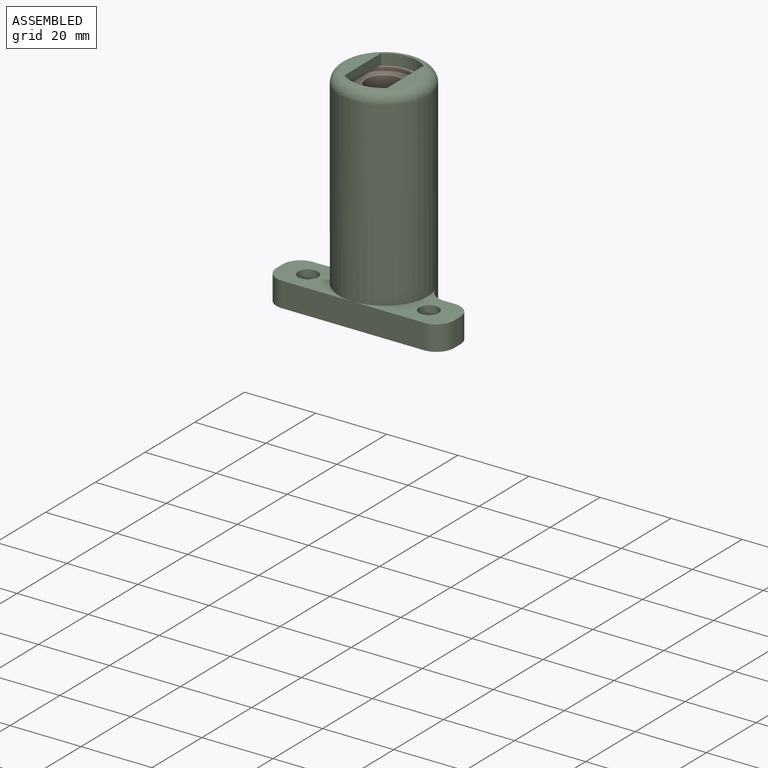
[diagram: assembled view]
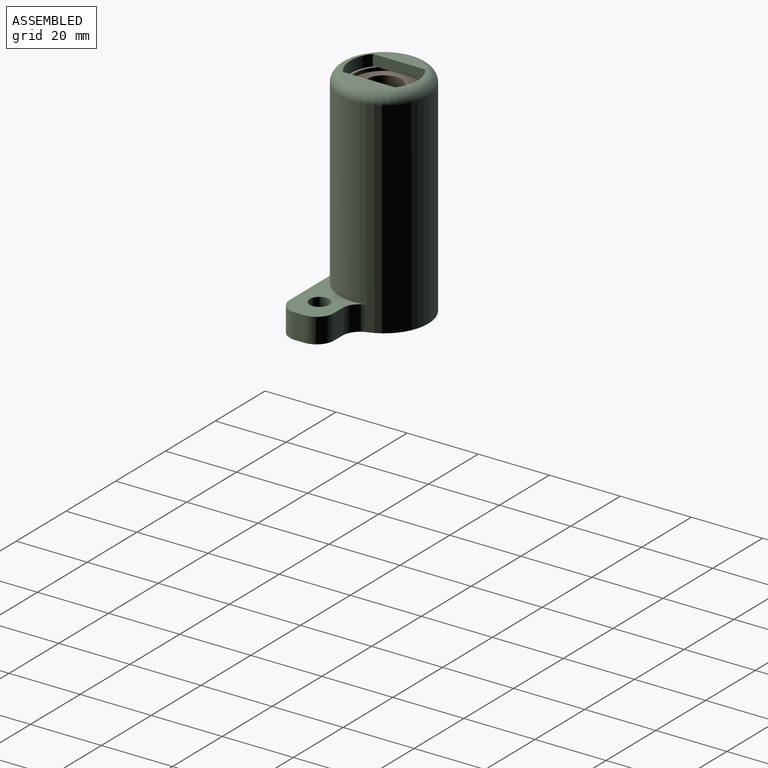
[diagram: assembled view, second angle]
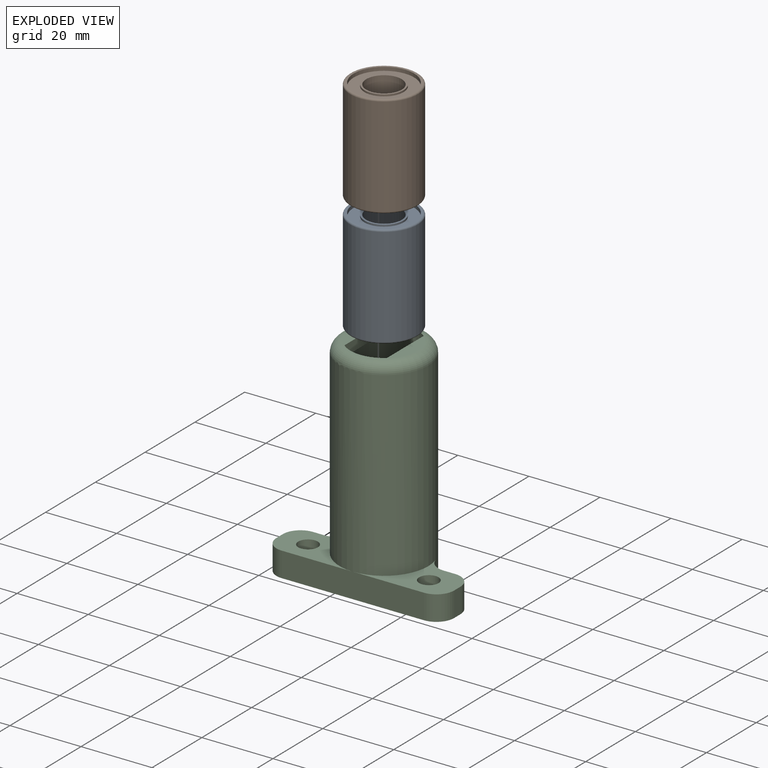
[diagram: exploded view]
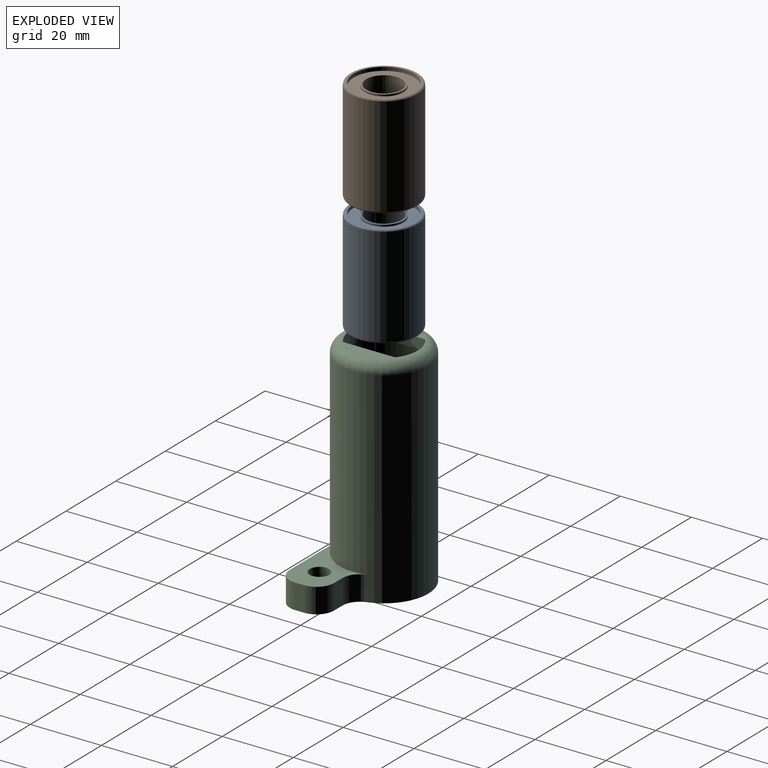
[diagram: exploded view, second angle]
ASSEMBLY  parts=3 mates=4
PART A: 14 faces, bbox 20.6x29x20.6 mm
  f0: plane 18x18mm, normal (0,-1,0), area 27.5mm2, adj f1,f13
  f1: torus R=9mm, axis (0,-1,0), area 46mm2, adj f0,f2
  f2: cylinder r=9.5mm len=28mm, axis (0,-1,0), area 1671.3mm2, adj f1,f3
  f3: torus R=9mm, axis (0,-1,0), area 46mm2, adj f2,f4
  f4: plane 18x18mm, normal (0,1,0), area 27.5mm2, adj f3,f5
  f5: cylinder r=8.5mm len=17mm, axis (0,-1,0), area 53.4mm2, adj f4,f6
  f6: plane 17x17mm, normal (0,1,0), area 131.9mm2, adj f5,f7
  f7: cylinder r=5.5mm len=11mm, axis (0,-1,0), area 17.3mm2, adj f6,f8
  f8: plane 11x11mm, normal (0,1,0), area 16.5mm2, adj f7,f9
  f9: cylinder r=5mm len=28mm, axis (0,-1,0), area 879.6mm2, adj f8,f10
  f10: plane 11x11mm, normal (0,-1,0), area 16.5mm2, adj f9,f11
  f11: cylinder r=5.5mm len=11mm, axis (0,-1,0), area 17.3mm2, adj f10,f12
  f12: plane 17x17mm, normal (0,-1,0), area 131.9mm2, adj f11,f13
  f13: cylinder r=8.5mm len=17mm, axis (0,-1,0), area 53.4mm2, adj f0,f12
PART B: same geometry as A
PART C: 25 faces, bbox 50x27.1x61 mm
  f0: plane 14.73x3.5mm, normal (0,0,1), area 35.9mm2, adj f20,f24
  f1: cylinder r=9.5mm len=61mm, axis (0,0,-1), area 3540mm2, adj f3,f19,f20,f21,f23,f24
  f2: cylinder r=12.5mm len=58mm, axis (0,0,-1), area 4229.7mm2, adj f3,f6,f12,f13,f14,f24
  f3: plane 50x25mm, normal (0,0,-1), area 524.5mm2, adj f1,f2,f4,f5,f7,f8,f9,f10
  f4: plane 7x3.23mm, normal (0,1,0), area 22.6mm2, adj f3,f6,f13,f15
  f5: plane 7x3.23mm, normal (0,1,0), area 22.6mm2, adj f3,f12,f14,f18
  f6: plane 25x16.07mm, normal (0,0,1), area 158.6mm2, adj f2,f4,f7,f8,f10,f13,f15,f16
  f7: plane 40x7mm, normal (0,-1,0), area 280mm2, adj f3,f6,f12,f16,f17
  f8: plane 7x2.5mm, normal (-1,0,0), area 17.5mm2, adj f3,f6,f15,f16
  f9: plane 7x2.5mm, normal (1,0,0), area 17.5mm2, adj f3,f12,f17,f18
  f10: cylinder r=2.75mm len=7mm, axis (0,0,-1), area 121mm2, adj f3,f6
  f11: cylinder r=2.75mm len=7mm, axis (0,0,-1), area 121mm2, adj f3,f12
  f12: plane 25x16.07mm, normal (0,0,1), area 158.6mm2, adj f2,f5,f7,f9,f11,f14,f17,f18
  f13: cylinder r=5mm len=7mm, axis (0,0,-1), area 44.8mm2, adj f2,f3,f4,f6
  f14: cylinder r=5mm len=7mm, axis (0,0,-1), area 44.8mm2, adj f2,f3,f5,f12
  f15: cylinder r=5mm len=7mm, axis (0,0,1), area 55mm2, adj f3,f4,f6,f8
  f16: cylinder r=5mm len=7mm, axis (0,0,-1), area 55mm2, adj f3,f6,f7,f8
  f17: cylinder r=5mm len=7mm, axis (0,0,1), area 55mm2, adj f3,f7,f9,f12
  f18: cylinder r=5mm len=7mm, axis (0,0,-1), area 55mm2, adj f3,f5,f9,f12
  f19: plane 14.73x3.5mm, normal (0,0,-1), area 35.9mm2, adj f1,f20
  f20: plane 14.73x3mm, normal (1,0,0), area 44.2mm2, adj f0,f1,f19
  f21: plane 14.73x3mm, normal (-1,0,0), area 44.2mm2, adj f1,f22,f23
  f22: plane 14.73x3.5mm, normal (0,0,1), area 35.9mm2, adj f21,f24
  f23: plane 14.73x3.5mm, normal (0,0,-1), area 35.9mm2, adj f1,f21
  f24: torus R=9.5mm, axis (0,0,1), area 337.8mm2, adj f0,f1,f2,f22
PLACE A rot(axis=(-1,0,0),90deg) t=(-36.65,39.87,28.5)mm
PLACE B rot(axis=(1,0,0),90deg) t=(-36.65,39.87,29.5)mm
PLACE C t=(-36.65,39.87,0)mm
MATE planar B.f1 <-> C.f23  axis (0,0,1) through (-36.65,39.87,58)mm
MATE cylindrical B.f1 <-> C.f1  axis (0,0,-1) through (-36.65,39.87,57.5)mm
MATE planar A.f1 <-> B.f1  axis (0,0,1) through (-36.65,39.87,29)mm
MATE cylindrical A.f1 <-> C.f2  axis (0,0,1) through (-36.65,39.87,14.5)mm
